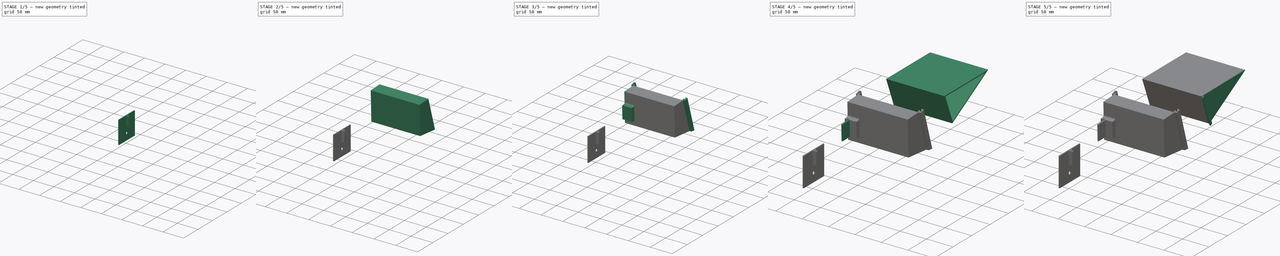
[diagram: build sequence overview — one tinted view per stage of 5, left to right]
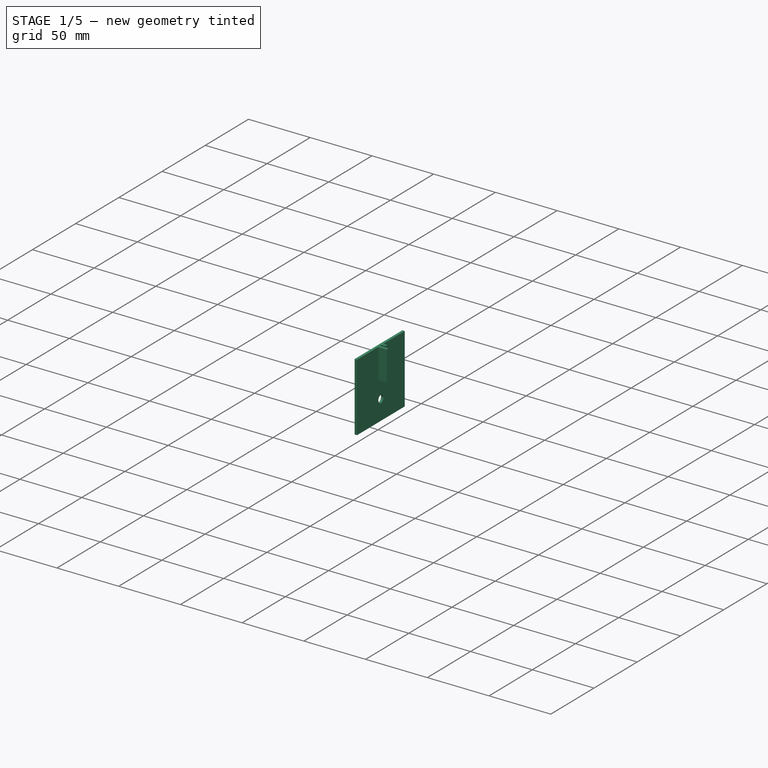
[diagram: stage 1 of 5 — iso view after this stage's code; geometry added in this stage tinted green]
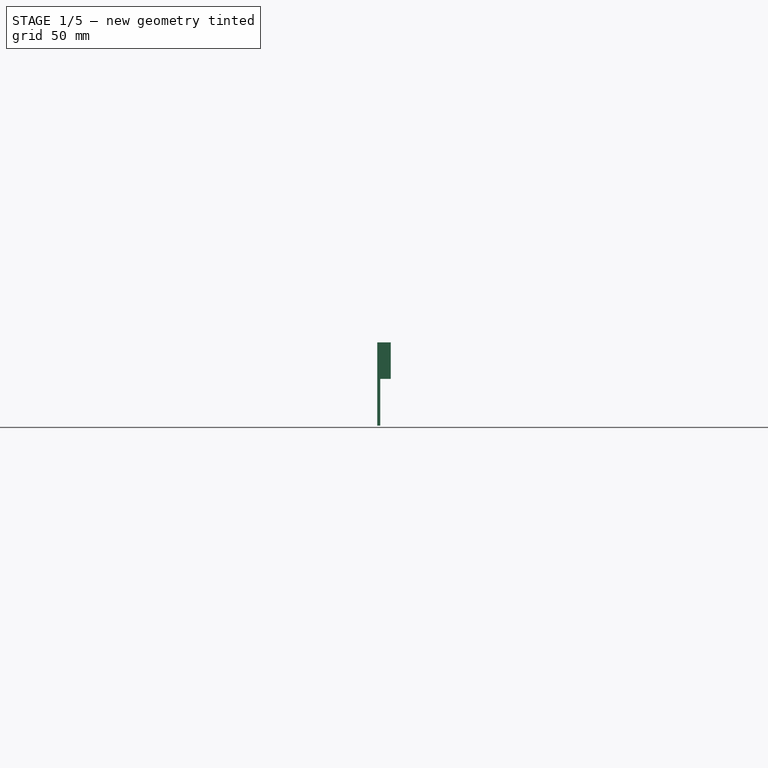
[diagram: stage 1 of 5 — front view after this stage's code; geometry added in this stage tinted green]
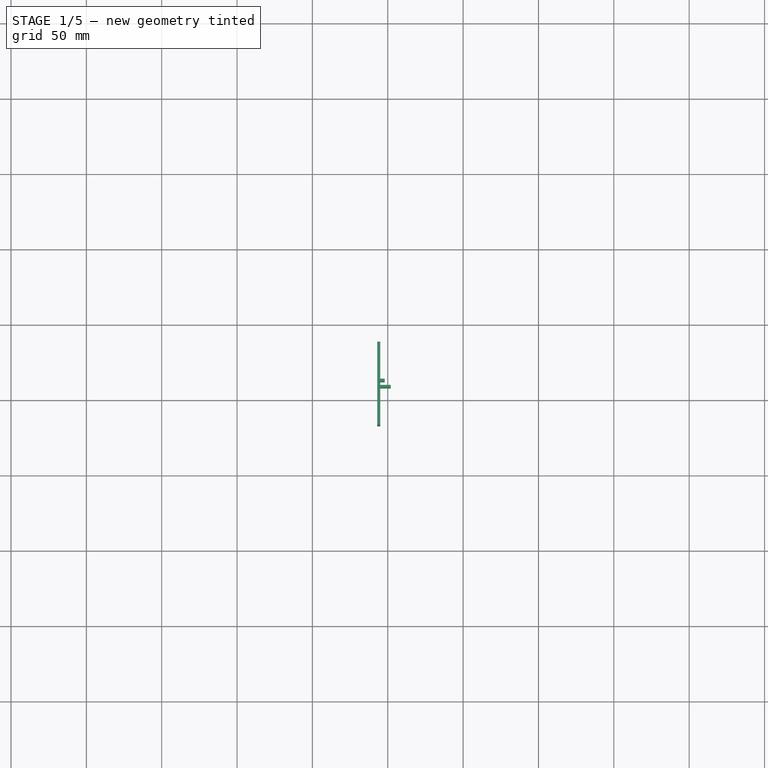
[diagram: stage 1 of 5 — top view after this stage's code; geometry added in this stage tinted green]
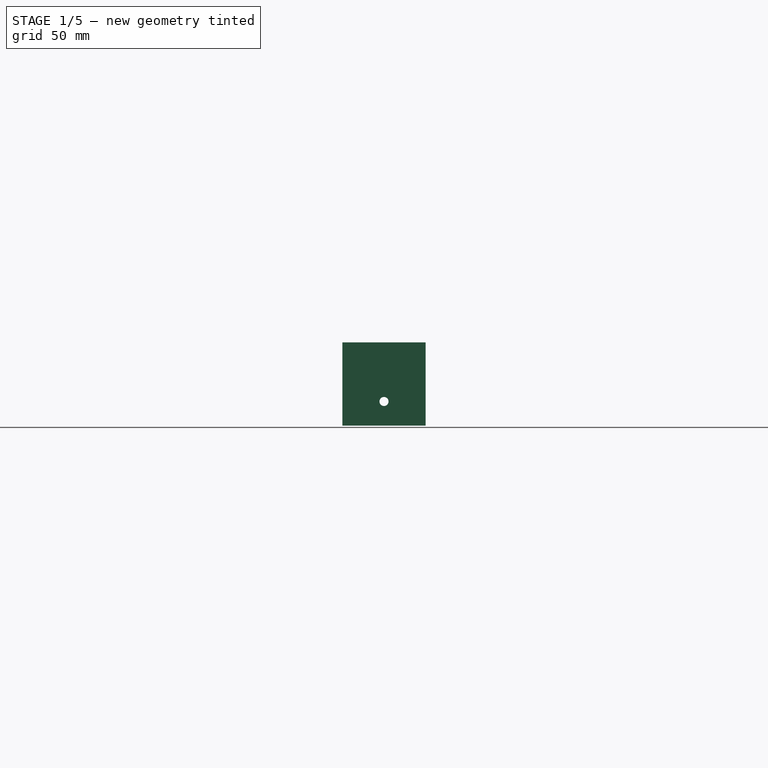
[diagram: stage 1 of 5 — right view after this stage's code; geometry added in this stage tinted green]
FCSTD DOCUMENT  (FreeCAD 0.19R24291 (Git))
Label: bunker
License: All rights reserved
LicenseURL: http://en.wikipedia.org/wiki/All_rights_reserved
objects: Sketcher::SketchObject×17, PartDesign::Pad×12, PartDesign::Plane×3, PartDesign::Body×3, Spreadsheet::Sheet×1, PartDesign::Mirrored×1, PartDesign::Hole×1, PartDesign::ShapeBinder×1, PartDesign::Pocket×1, App::Part×1
note: 53 computed .brp shape members not serialized (recipe doc carries the construction recipe); baked Part::Feature solids carry a one-line shape summary decoded from their .brp

FEATURE [PartDesign::ShapeBinder] CopyPad006
  Placement = pos=(0,0,0) rot=(0.57735,0.57735,0.57735;2.0944rad)
  TraceSupport = false
FEATURE [PartDesign::Plane] DatumPlane002
  Length = 197.613
  MapMode = 5
  Placement = pos=(-57,2.35e-14,7e-16) rot=(-0.57735,-0.57735,0.57735;2.0944rad)
  ResizeMode = 0
  Support = -> [CopyPad006]
  Width = 129.176
FEATURE [Sketcher::SketchObject] Sketch011
  FullyConstrained = false
  MapMode = 5
  Placement = pos=(-57,2.35e-14,7e-16) rot=(-0.57735,-0.57735,0.57735;2.0944rad)
  Support = -> [DatumPlane002]
  sketch-geometry (12):
    g0: Circle CenterX=-66.3976 CenterY=-0.4616 CenterZ=0 NormalX=0 NormalY=0 NormalZ=1 AngleXU=0 Radius=1.5
    g1: Circle CenterX=-112.598 CenterY=-0.4616 CenterZ=0 NormalX=0 NormalY=0 NormalZ=1 AngleXU=0 Radius=1.5
    g2: Circle CenterX=-89.4976 CenterY=11.1384 CenterZ=0 NormalX=0 NormalY=0 NormalZ=1 AngleXU=0 Radius=3
    g3: LineSegment StartX=-89.4976 StartY=-0.4616 StartZ=0 EndX=-111.098 EndY=-0.4616 EndZ=0
    g4: LineSegment StartX=-89.4976 StartY=-0.4616 StartZ=0 EndX=-114.098 EndY=-0.4616 EndZ=0
    g5: LineSegment StartX=-89.4976 StartY=-0.4616 StartZ=0 EndX=-67.8976 EndY=-0.4616 EndZ=0
    g6: LineSegment StartX=-89.4976 StartY=-0.4616 StartZ=0 EndX=-89.4976 EndY=8.1384 EndZ=0
    g7: Circle CenterX=-89.4976 CenterY=-0.4616 CenterZ=0 NormalX=0 NormalY=0 NormalZ=1 AngleXU=0 Radius=27.6
    g8: LineSegment StartX=-61.8976 StartY=-28.0616 StartZ=0 EndX=-117.098 EndY=-28.0616 EndZ=0
    g9: LineSegment StartX=-117.098 StartY=-28.0616 StartZ=0 EndX=-117.098 EndY=27.1384 EndZ=0
    g10: LineSegment StartX=-117.098 StartY=27.1384 StartZ=0 EndX=-61.8976 EndY=27.1384 EndZ=0
    g11: LineSegment StartX=-61.8976 StartY=27.1384 StartZ=0 EndX=-61.8976 EndY=-28.0616 EndZ=0
  constraints (34):
    c: Equal(g0,g1)
    c: PointOnObject(g3,g1)
    c: Coincident(g4,g3)
    c: PointOnObject(g4,g1)
    c: PointOnObject(g1,g4)
    c: PointOnObject(g3,g4)
    c: Coincident(g5,g3)
    c: PointOnObject(g5,g0)
    c: Perpendicular(g0,g5)
    c: Coincident(g6,g3)
    c: PointOnObject(g6,g2)
    c: Perpendicular(g3,g6)
    c: Perpendicular(g2,g6)
    c: Perpendicular(g5,g6)
    c: Equal(g5,g3)
    c: Diameter(g2) = 6
    c: Distance(g4) = 24.6
    c: Distance(g3) = 21.6
    c: Distance(g6) = 8.6
    c: Coincident(g7,g3)
    c: Radius(g7) = 27.6
    c: Angle(g-1,g3) = 3.14159
    c: Coincident(g8,g9)
    c: Coincident(g9,g10)
    c: Coincident(g10,g11)
    c: Coincident(g11,g8)
    c: Horizontal(g8)
    c: Horizontal(g10)
    c: Vertical(g9)
    c: Vertical(g11)
    c: Tangent(g8,g7)
    c: Tangent(g7,g11)
    c: Tangent(g9,g7)
    c: Tangent(g10,g7)
FEATURE [PartDesign::Pad] Pad007
  Direction = (1,1,1)
  Length = 2
  Length2 = 100
  Placement = pos=(-57,2.35e-14,7e-16) rot=(-0.57735,-0.57735,0.57735;2.0944rad)
  Profile = -> Sketch011
  Reversed = true
  Type = 0
FEATURE [Sketcher::SketchObject] Sketch015
  ExternalGeometry = -> [Pocket]
  FullyConstrained = true
  MapMode = 5
  Placement = pos=(-35,1e-16,6e-16) rot=(0.57735,0.57735,0.57735;2.0944rad)
  Support = -> [Pocket]
FEATURE [PartDesign::Pad] Pad008
  BaseFeature = -> Pad007
  Direction = (1,1,1)
  Length = 3
  Length2 = 100
  Placement = pos=(-57,2.35e-14,7e-16) rot=(-0.57735,-0.57735,0.57735;2.0944rad)
  Profile = -> Sketch012
  Type = 0
FEATURE [Sketcher::SketchObject] Sketch018
  ExternalGeometry = -> [Pad009]
  FullyConstrained = false
  MapMode = 5
  Placement = pos=(-49.8,2.49e-14,6e-16) rot=(-0.57735,-0.57735,0.57735;2.0944rad)
  Support = -> [Pad009]
  expr: Constraints[9] = <<D>>.thickness
  expr: Constraints[7] = <<D>>.thickness
  sketch-geometry (3):
    g0: LineSegment StartX=-21.1861 StartY=-47.7389 StartZ=0 EndX=-20.3743 EndY=-20.8053 EndZ=0
    g1: LineSegment StartX=-23.0598 StartY=-43.5178 StartZ=0 EndX=-21.0607 EndY=-43.5781 EndZ=0
    g2: LineSegment StartX=-20.3743 StartY=-20.8053 StartZ=0 EndX=-20.3141 EndY=-18.8062 EndZ=0
  constraints (10):
    c: PointOnObject(g1,g-3)
    c: PointOnObject(g1,g0)
    c: Perpendicular(g1,g0)
    c: Perpendicular(g1,g-3)
    c: PointOnObject(g0,g-4)
    c: Coincident(g2,g0)
    c: Parallel(g0,g2)
    c: Distance(g2) = 2
    c: PointOnObject(g2,g-5)
    c: Distance(g1) = 2
FEATURE [PartDesign::Body] Body
  Group = -> [Sketch,Pad,Sketch001,Pad001,DatumPlane,Sketch002,Pad002,Mirrored,Sketch008,Sketch009,Pad006,Sketch014,Pocket,Sketch015,Sketch017,Pad009,Sketch018]
  Origin = -> Origin
  Tip = -> Pad009
FEATURE [PartDesign::Pad] Pad010
  BaseFeature = -> Pad008
  Direction = (1,1,1)
  Length = 4
  Length2 = 100
  Placement = pos=(-57,2.35e-14,7e-16) rot=(-0.57735,-0.57735,0.57735;2.0944rad)
  Profile = -> Pad008 [Face17]
  Type = 0
  expr: Length = 2 * <<D>>.thickness
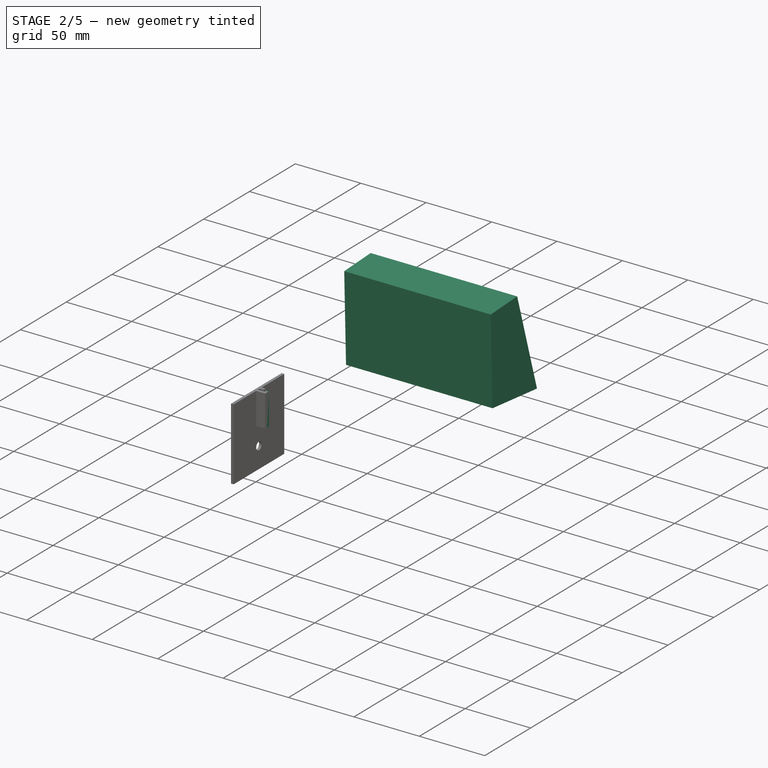
[diagram: stage 2 of 5 — iso view after this stage's code; geometry added in this stage tinted green]
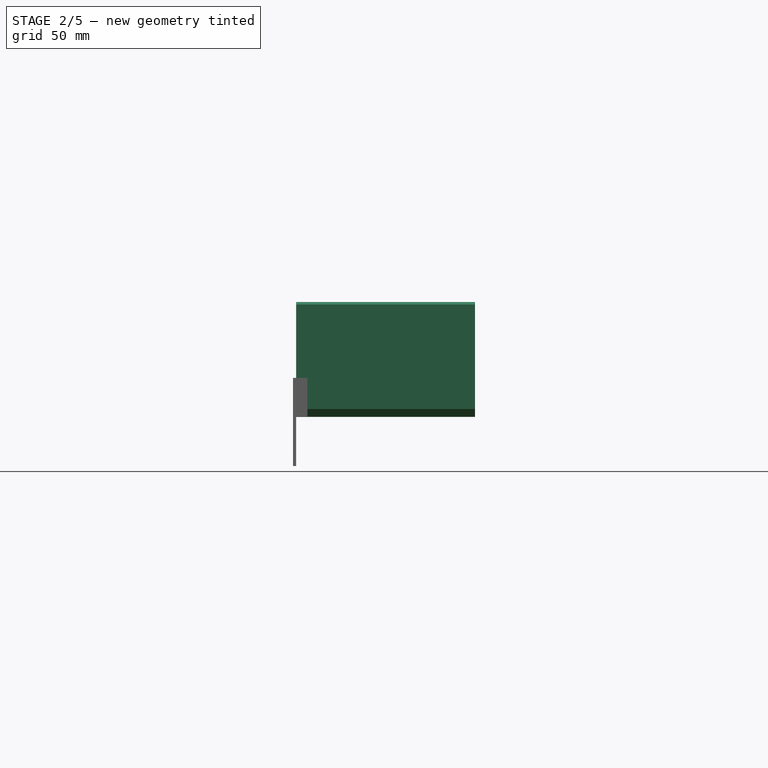
[diagram: stage 2 of 5 — front view after this stage's code; geometry added in this stage tinted green]
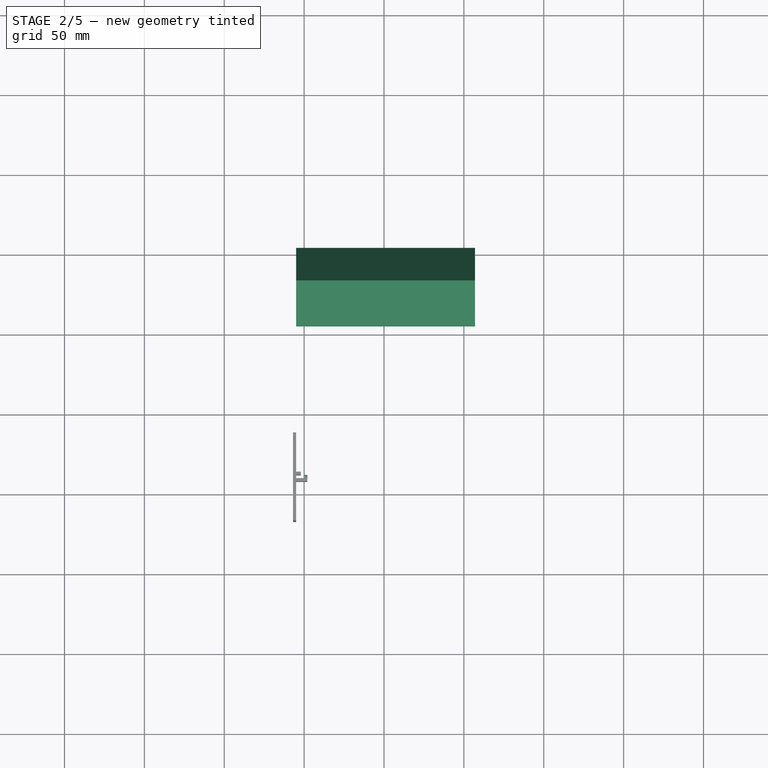
[diagram: stage 2 of 5 — top view after this stage's code; geometry added in this stage tinted green]
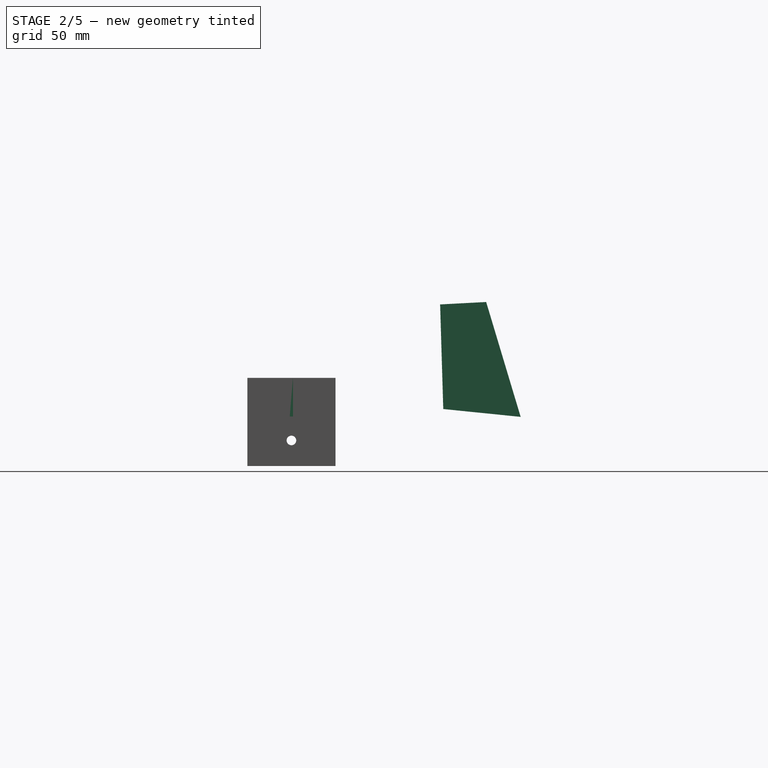
[diagram: stage 2 of 5 — right view after this stage's code; geometry added in this stage tinted green]
FEATURE [Spreadsheet::Sheet] Spreadsheet  label="D"
  cells = A1=Thickness; B1(thickness)=2; A2=Width; B2(width)=110; A3=Gap; B3(gap)=0.1
FEATURE [Sketcher::SketchObject] Sketch
  FullyConstrained = false
  MapMode = 5
  Placement = pos=(0,0,0) rot=(0.57735,0.57735,0.57735;2.0944rad)
  Support = -> [YZ_Plane]
  expr: Constraints[27] = <<D>>.thickness
  sketch-geometry (12):
    g0: LineSegment StartX=5.55735 StartY=8.52684 StartZ=0 EndX=3.58389 EndY=74.0022 EndZ=0
    g1: LineSegment StartX=3.58389 StartY=74.0022 StartZ=0 EndX=32.406 EndY=75.5298 EndZ=0
    g2: LineSegment StartX=32.406 StartY=75.5298 StartZ=0 EndX=54.0069 EndY=3.62284 EndZ=0
    g3: LineSegment StartX=54.0069 StartY=3.62284 StartZ=0 EndX=5.55735 EndY=8.52684 EndZ=0
    g4: LineSegment StartX=5.64187 StartY=72.1085 StartZ=0 EndX=30.9427 EndY=73.4494 EndZ=0
    g5: LineSegment StartX=30.9427 StartY=73.4494 StartZ=0 EndX=51.2303 EndY=5.9141 EndZ=0
    g6: LineSegment StartX=51.2303 StartY=5.9141 StartZ=0 EndX=7.50361 EndY=10.3401 EndZ=0
    g7: LineSegment StartX=7.50361 StartY=10.3401 StartZ=0 EndX=5.64187 EndY=72.1085 EndZ=0
    g8: LineSegment StartX=11.7302 StartY=72.4312 StartZ=0 EndX=11.6244 EndY=74.4284 EndZ=0
    g9: LineSegment StartX=32.3973 StartY=68.6072 StartZ=0 EndX=34.3127 EndY=69.1826 EndZ=0
    g10: LineSegment StartX=6.02577 StartY=59.3714 StartZ=0 EndX=4.02668 EndY=59.3112 EndZ=0
    g11: LineSegment StartX=26.9949 StartY=6.35696 StartZ=0 EndX=27.1963 EndY=8.34679 EndZ=0
  constraints (29):
    c: Coincident(g0,g1)
    c: Coincident(g1,g2)
    c: Coincident(g2,g3)
    c: Coincident(g3,g0)
    c: Coincident(g4,g5)
    c: Coincident(g5,g6)
    c: Coincident(g6,g7)
    c: Coincident(g7,g4)
    c: PointOnObject(g11,g6)
    c: PointOnObject(g11,g3)
    c: PointOnObject(g10,g7)
    c: PointOnObject(g10,g0)
    c: PointOnObject(g9,g5)
    c: PointOnObject(g9,g2)
    c: PointOnObject(g8,g1)
    c: PointOnObject(g8,g4)
    c: Perpendicular(g6,g11)
    c: Perpendicular(g3,g11)
    c: Perpendicular(g0,g10)
    c: Perpendicular(g7,g10)
    c: Perpendicular(g1,g8)
    c: Perpendicular(g4,g8)
    c: Perpendicular(g5,g9)
    c: Perpendicular(g2,g9)
    c: Equal(g8,g9)
    c: Equal(g9,g10)
    c: Equal(g10,g11)
    c: Distance(g11) = 2
    c: Angle(g5,g6) = 1.1781
FEATURE [PartDesign::Pad] Pad
  Direction = (1,1,1)
  Length = 55
  Length2 = 55
  Placement = pos=(0,0,0) rot=(0.57735,0.57735,0.57735;2.0944rad)
  Profile = -> Sketch
  Type = 4
  expr: Length2 = <<D>>.width / 2
  expr: Length = <<D>>.width / 2
FEATURE [Sketcher::SketchObject] Sketch001
  ExternalGeometry = -> [Pad]
  FullyConstrained = true
  MapMode = 5
  Placement = pos=(55,-2.44e-14,1.22e-14) rot=(0.57735,0.57735,0.57735;2.0944rad)
  Support = -> [Pad]
  sketch-geometry (4):
    g0: LineSegment StartX=3.58389 StartY=74.0022 StartZ=0 EndX=32.406 EndY=75.5298 EndZ=0
    g1: LineSegment StartX=32.406 StartY=75.5298 StartZ=0 EndX=54.0069 EndY=3.62284 EndZ=0
    g2: LineSegment StartX=54.0069 StartY=3.62284 StartZ=0 EndX=5.55735 EndY=8.52684 EndZ=0
    g3: LineSegment StartX=5.55735 StartY=8.52684 StartZ=0 EndX=3.58389 EndY=74.0022 EndZ=0
  constraints (8):
    c: Coincident(g-4,g0)
    c: Coincident(g0,g-5)
    c: Coincident(g0,g1)
    c: Coincident(g1,g-6)
    c: Coincident(g1,g2)
    c: Coincident(g2,g-6)
    c: Coincident(g2,g3)
    c: Coincident(g3,g0)
FEATURE [PartDesign::Pad] Pad001
  BaseFeature = -> Pad
  Direction = (1,1,1)
  Length = 2
  Length2 = 100
  Placement = pos=(0,0,0) rot=(0.57735,0.57735,0.57735;2.0944rad)
  Profile = -> Sketch001
  Type = 0
  expr: Length = <<D>>.thickness
FEATURE [Sketcher::SketchObject] Sketch013
  ExternalGeometry = -> [Pad010]
  FullyConstrained = true
  MapMode = 5
  Placement = pos=(-57,-90.5476,-1.94e-14) rot=(-0.57735,0.57735,0.57735;2.0944rad)
  Support = -> [Pad010]
  sketch-geometry (4):
    g0: LineSegment StartX=-28.0616 StartY=-9 StartZ=0 EndX=-3.8616 EndY=-9 EndZ=0
    g1: LineSegment StartX=-3.8616 StartY=-9 StartZ=0 EndX=-3.8616 EndY=-7 EndZ=0
    g2: LineSegment StartX=-3.8616 StartY=-7 StartZ=0 EndX=-28.0616 EndY=-7 EndZ=0
    g3: LineSegment StartX=-28.0616 StartY=-7 StartZ=0 EndX=-28.0616 EndY=-9 EndZ=0
  constraints (10):
    c: Coincident(g0,g1)
    c: Coincident(g1,g2)
    c: Coincident(g2,g3)
    c: Coincident(g3,g0)
    c: Vertical(g3)
    c: Distance(g3) = 2
    c: Coincident(g0,g-4)
    c: Coincident(g0,g-4)
    c: Parallel(g1,g3)
    c: Parallel(g2,g0)
FEATURE [PartDesign::Pad] Pad011
  BaseFeature = -> Pad010
  Direction = (1,1,1)
  Length = 2
  Length2 = 100
  Placement = pos=(-57,2.35e-14,7e-16) rot=(-0.57735,-0.57735,0.57735;2.0944rad)
  Profile = -> Sketch013
  Type = 0
  expr: Length = <<D>>.thickness
FEATURE [PartDesign::Body] Body002
  Group = -> [DatumPlane002,CopyPad006,Sketch011,Pad007,Sketch012,Sketch013,Pad008,Sketch016,Pad010,Pad011]
  Origin = -> Origin003
  Tip = -> Pad011
FEATURE [App::Part] Part
  Group = -> [Body,Body001,Spreadsheet,Body002]
  Origin = -> Origin002
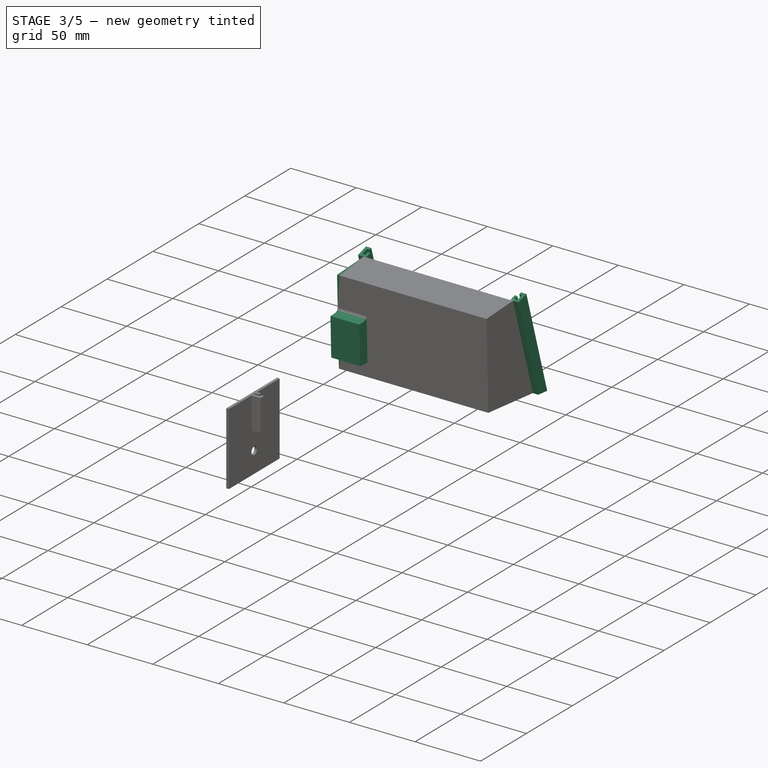
[diagram: stage 3 of 5 — iso view after this stage's code; geometry added in this stage tinted green]
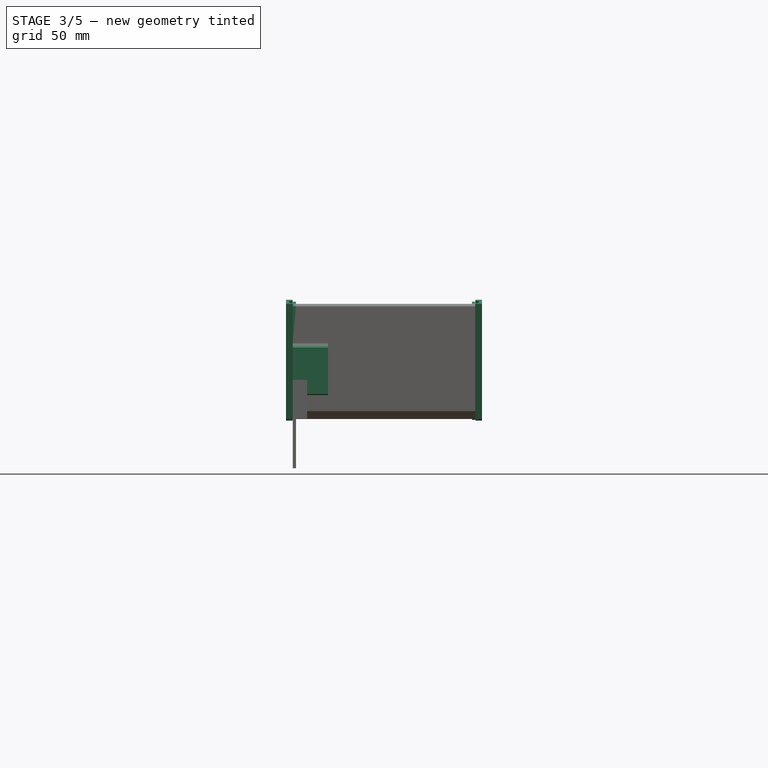
[diagram: stage 3 of 5 — front view after this stage's code; geometry added in this stage tinted green]
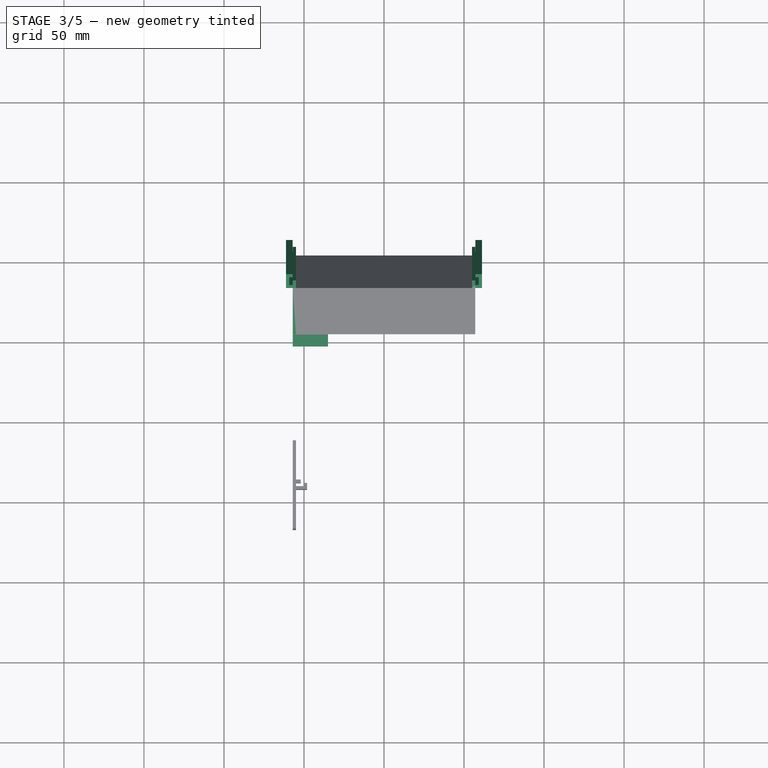
[diagram: stage 3 of 5 — top view after this stage's code; geometry added in this stage tinted green]
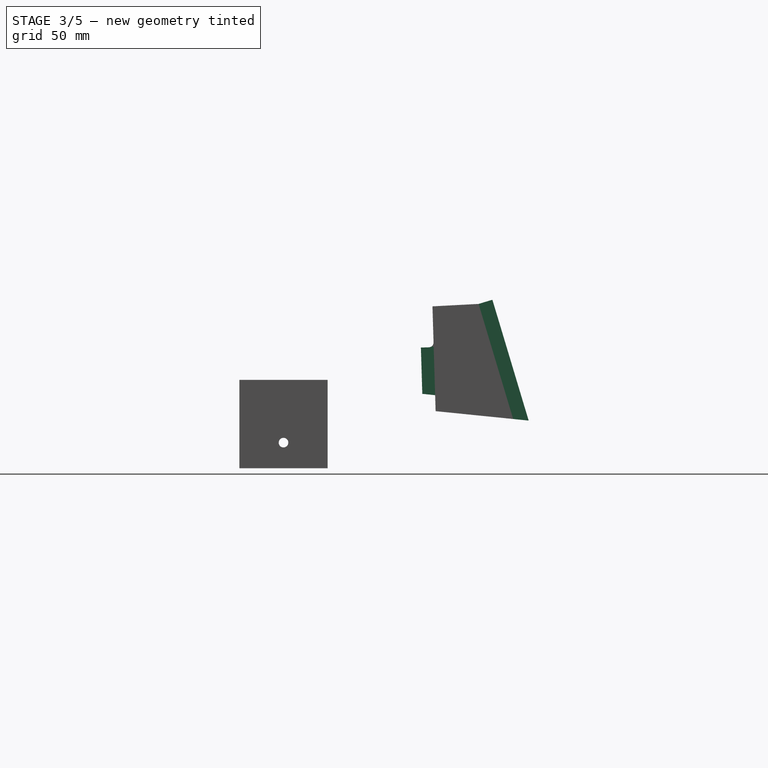
[diagram: stage 3 of 5 — right view after this stage's code; geometry added in this stage tinted green]
FEATURE [PartDesign::Plane] DatumPlane
  Length = 146.134
  MapMode = 7
  Placement = pos=(57,32.406,75.5298) rot=(1,0,0;0.291824rad)
  ResizeMode = 0
  Support = -> [Pad001]
  Width = 138.792
FEATURE [Sketcher::SketchObject] Sketch002
  ExternalGeometry = -> [Pad001]
  FullyConstrained = true
  MapMode = 5
  Placement = pos=(57,32.406,75.5298) rot=(1,0,0;0.291824rad)
  Support = -> [DatumPlane]
  expr: Constraints[28] = <<D>>.gap
  expr: Constraints[27] = <<D>>.thickness
  expr: Constraints[26] = <<D>>.thickness
  expr: Constraints[24] = <<D>>.thickness + 2 * <<D>>.gap
  expr: Constraints[23] = <<D>>.thickness
  sketch-geometry (11):
    g0: LineSegment StartX=0 StartY=7.1e-15 StartZ=0 EndX=4.2 EndY=0 EndZ=0
    g1: LineSegment StartX=4.2 StartY=0 StartZ=0 EndX=4.2 EndY=9 EndZ=0
    g2: LineSegment StartX=4.2 StartY=9 StartZ=0 EndX=0.1 EndY=9 EndZ=0
    g3: LineSegment StartX=0.1 StartY=9 StartZ=0 EndX=0.1 EndY=7 EndZ=0
    g4: LineSegment StartX=0.1 StartY=7 StartZ=0 EndX=2.2 EndY=7 EndZ=0
    g5: LineSegment StartX=2.2 StartY=7 StartZ=0 EndX=2.2 EndY=2 EndZ=0
    g6: LineSegment StartX=2.2 StartY=2 StartZ=0 EndX=0 EndY=2 EndZ=0
    g7: LineSegment StartX=0 StartY=2 StartZ=0 EndX=0 EndY=5 EndZ=0
    g8: LineSegment StartX=0 StartY=5 StartZ=0 EndX=-2 EndY=5 EndZ=0
    g9: LineSegment StartX=-2 StartY=5 StartZ=0 EndX=-2 EndY=0 EndZ=0
    g10: LineSegment StartX=-2 StartY=0 StartZ=0 EndX=0 EndY=7.1e-15 EndZ=0
  constraints (31):
    c: Coincident(g-1,g0)
    c: PointOnObject(g0,g-1)
    c: Coincident(g0,g1)
    c: Vertical(g1)
    c: Coincident(g1,g2)
    c: Horizontal(g2)
    c: Coincident(g2,g3)
    c: Vertical(g3)
    c: Coincident(g3,g4)
    c: Horizontal(g4)
    c: Coincident(g4,g5)
    c: Vertical(g5)
    c: Coincident(g5,g6)
    c: PointOnObject(g6,g-2)
    c: Horizontal(g6)
    c: Coincident(g6,g7)
    c: PointOnObject(g7,g-2)
    c: Coincident(g7,g8)
    c: Horizontal(g8)
    c: Coincident(g8,g9)
    c: Coincident(g9,g-3)
    c: Vertical(g9)
    c: Equal(g8,g3)
    c: DistanceX(g5,g0) = 2
    c: Distance(g6) = 2.2
    c: Distance(g7) = 3
    c: DistanceY(g0,g5) = 2
    c: DistanceY(g7,g3) = 2
    c: DistanceX(g7,g3) = 0.1
    c: Coincident(g10,g9)
    c: Coincident(g10,g0)
FEATURE [PartDesign::Pad] Pad002
  BaseFeature = -> Pad001
  Direction = (1,1,1)
  Length = 10
  Length2 = 100
  Placement = pos=(0,0,0) rot=(0.57735,0.57735,0.57735;2.0944rad)
  Profile = -> Sketch002
  Type = 3
  UpToFace = -> Pad001 [Face7]
FEATURE [PartDesign::Mirrored] Mirrored
  BaseFeature = -> Pad002
  MirrorPlane = -> YZ_Plane
  Originals = -> [Pad001,Pad002]
  Placement = pos=(0,0,0) rot=(0.57735,0.57735,0.57735;2.0944rad)
FEATURE [PartDesign::Body] Body001
  Group = -> [Sketch003,Pad003,Sketch004,Pad004,DatumPlane001,Sketch005,Pad005,Sketch006,Hole]
  Origin = -> Origin001
  Tip = -> Hole
FEATURE [Sketcher::SketchObject] Sketch008
  ExternalGeometry = -> [Mirrored]
  FullyConstrained = true
  MapMode = 5
  Placement = pos=(-57,2.35e-14,7.1e-15) rot=(-0.57735,-0.57735,0.57735;2.0944rad)
  Support = -> [Mirrored]
  sketch-geometry (7):
    g0: LineSegment StartX=5.25608 StartY=-18.5223 StartZ=0 EndX=4.35228 EndY=-48.5087 EndZ=0
    g1: LineSegment StartX=4.35228 StartY=-48.5087 StartZ=0 EndX=-3.64409 EndY=-48.2677 EndZ=0
    g2: LineSegment StartX=-3.64409 StartY=-48.2677 StartZ=0 EndX=-2.77204 EndY=-19.3349 EndZ=0
    g3: LineSegment StartX=5.25608 StartY=-18.5223 StartZ=0 EndX=-2.77204 EndY=-19.3349 EndZ=0
    g4: ArcOfCircle CenterX=1.26326 CenterY=-51.4169 CenterZ=0 NormalX=0 NormalY=0 NormalZ=1 AngleXU=0 Radius=3 StartAngle=6.25305 EndAngle=7.82384
    g5: LineSegment StartX=-3.64409 StartY=-48.2677 StartZ=0 EndX=1.35366 EndY=-48.4183 EndZ=0
    g6: LineSegment StartX=4.26189 StartY=-51.5073 StartZ=0 EndX=4.35228 EndY=-48.5087 EndZ=0
  constraints (21):
    c: PointOnObject(g0,g-4)
    c: Coincident(g0,g1)
    c: Coincident(g1,g2)
    c: Parallel(g-3,g3)
    c: Distance(g1) = 8
    c: Distance(g0) = 30
    c: Parallel(g0,g2)
    c: Perpendicular(g0,g1)
    c: PointOnObject(g4,g1)
    c: PointOnObject(g4,g-4)
    c: Coincident(g5,g2)
    c: Coincident(g5,g4)
    c: Tangent(g4,g5)
    c: Tangent(g4,g-4)
    c: Radius(g4) = 3
    c: Coincident(g6,g4)
    c: Coincident(g6,g0)
    c: Coincident(g0,g3)
    c: Coincident(g2,g3)
    c: PointOnObject(g0,g-4)
    c: Distance(g0,g-4) = 10
FEATURE [Sketcher::SketchObject] Sketch009
  ExternalGeometry = -> [Mirrored,Sketch008]
  FullyConstrained = false
  MapMode = 5
  Placement = pos=(-57,2.35e-14,7.1e-15) rot=(-0.57735,-0.57735,0.57735;2.0944rad)
  Support = -> [Mirrored]
  sketch-geometry (10):
    g0: Circle CenterX=-7.03227 CenterY=0.462382 CenterZ=0 NormalX=0 NormalY=0 NormalZ=1 AngleXU=0 Radius=3
    g1: LineSegment StartX=-10.0202 StartY=0.19411 StartZ=0 EndX=-18.5858 EndY=-0.574939 EndZ=0
    g2: LineSegment StartX=-18.5858 StartY=-0.574939 StartZ=0 EndX=-20.4905 EndY=20.6397 EndZ=0
    g3: LineSegment StartX=-18.5858 StartY=-0.574939 StartZ=0 EndX=-20.7856 EndY=23.9265 EndZ=0
    g4: LineSegment StartX=-18.5858 StartY=-0.574939 StartZ=0 EndX=-16.6811 EndY=-21.7896 EndZ=0
    g5: Circle CenterX=-20.6381 CenterY=22.2831 CenterZ=0 NormalX=0 NormalY=0 NormalZ=1 AngleXU=0 Radius=1.65
    g6: Circle CenterX=-16.5335 CenterY=-23.433 CenterZ=0 NormalX=0 NormalY=0 NormalZ=1 AngleXU=0 Radius=1.65
    g7: ArcOfCircle CenterX=-16.5335 CenterY=-23.433 CenterZ=0 NormalX=0 NormalY=0 NormalZ=1 AngleXU=0 Radius=4.26244 StartAngle=3.23114 EndAngle=4.25778
    g8: ArcOfCircle CenterX=-20.6381 CenterY=22.2831 CenterZ=0 NormalX=0 NormalY=0 NormalZ=1 AngleXU=0 Radius=4.26244 StartAngle=1.19385 EndAngle=3.23114
    g9: LineSegment StartX=-20.7789 StartY=-23.8142 StartZ=0 EndX=-24.8834 EndY=21.9019 EndZ=0
  constraints (26):
    c: Radius(g0) = 3
    c: Perpendicular(g0,g1)
    c: PointOnObject(g1,g0)
    c: Coincident(g2,g1)
    c: Coincident(g3,g1)
    c: Coincident(g4,g1)
    c: PointOnObject(g3,g5)
    c: PointOnObject(g2,g5)
    c: PointOnObject(g2,g3)
    c: Perpendicular(g5,g2)
    c: Equal(g2,g4)
    c: Perpendicular(g2,g1)
    c: Parallel(g4,g2)
    c: PointOnObject(g4,g6)
    c: Equal(g6,g5)
    c: Perpendicular(g6,g4)
    c: Distance(g3) = 24.6
    c: Distance(g2) = 21.3
    c: Distance(g1) = 8.6
    c: Coincident(g7,g6)
    c: Coincident(g8,g5)
    c: Coincident(g9,g7)
    c: Coincident(g9,g8)
    c: Equal(g7,g8)
    c: Tangent(g9,g7)
    c: Tangent(g9,g8)
FEATURE [PartDesign::Pad] Pad006
  BaseFeature = -> Mirrored
  Direction = (1,1,1)
  Length = 22
  Length2 = 100
  Placement = pos=(0,0,0) rot=(0.57735,0.57735,0.57735;2.0944rad)
  Profile = -> Sketch008
  Reversed = true
  Type = 0
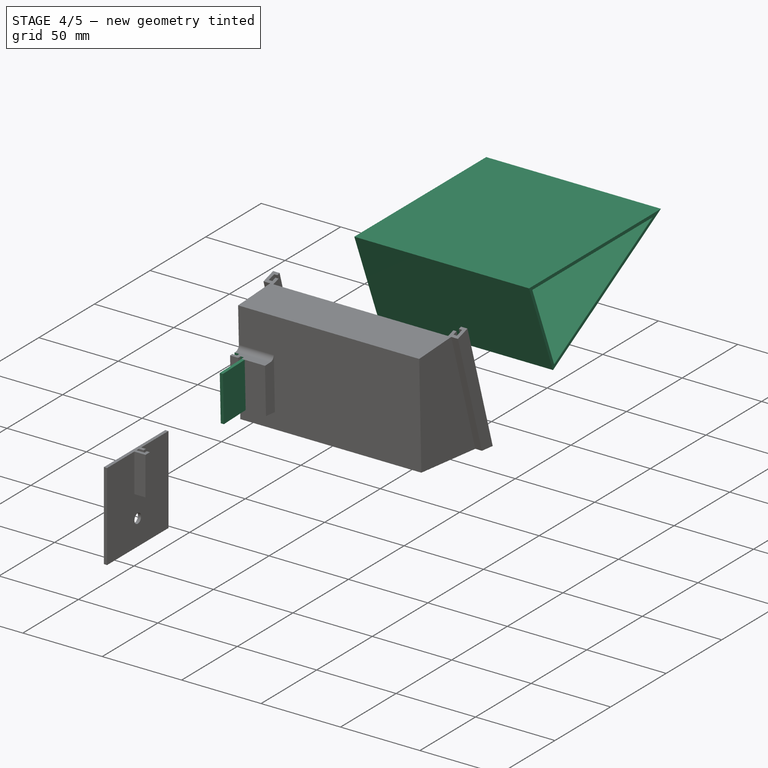
[diagram: stage 4 of 5 — iso view after this stage's code; geometry added in this stage tinted green]
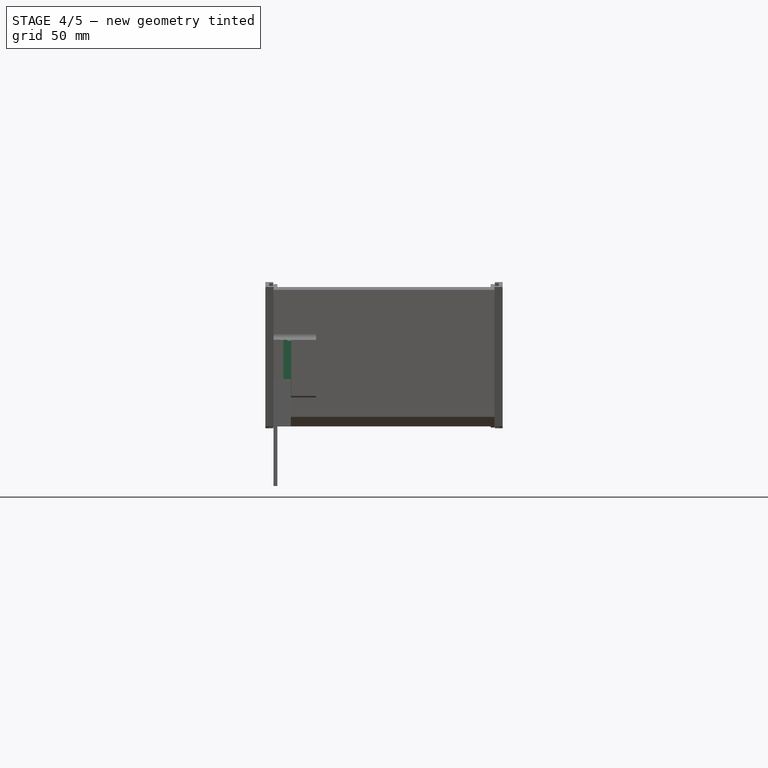
[diagram: stage 4 of 5 — front view after this stage's code; geometry added in this stage tinted green]
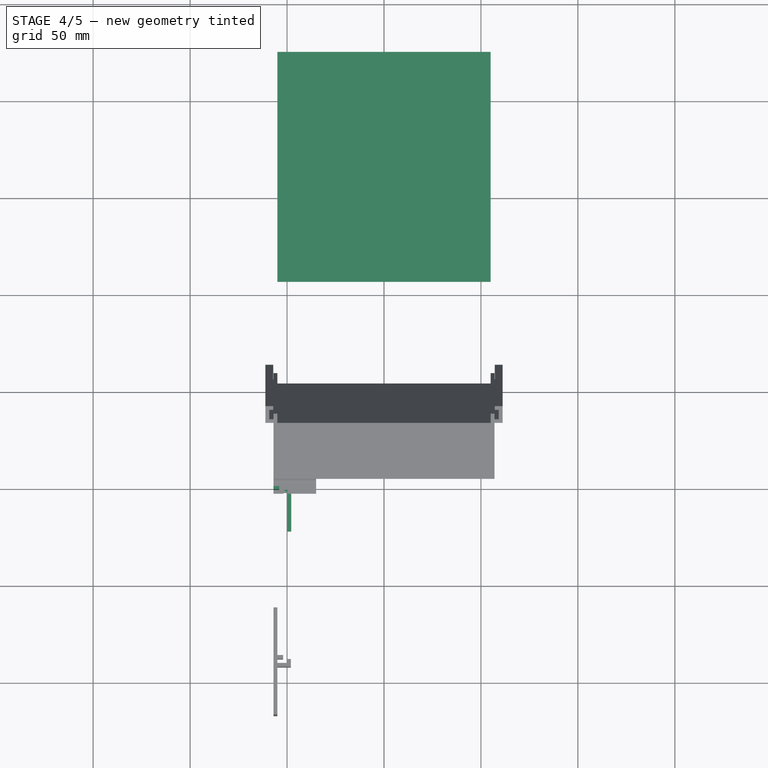
[diagram: stage 4 of 5 — top view after this stage's code; geometry added in this stage tinted green]
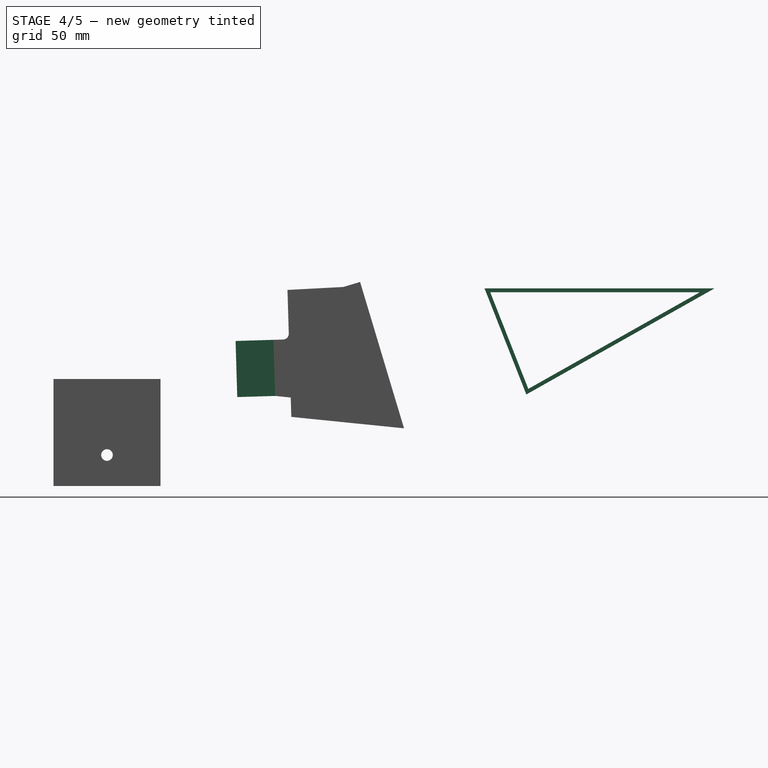
[diagram: stage 4 of 5 — right view after this stage's code; geometry added in this stage tinted green]
FEATURE [Sketcher::SketchObject] Sketch003
  FullyConstrained = false
  MapMode = 5
  Placement = pos=(0,0,0) rot=(0.57735,0.57735,0.57735;2.0944rad)
  Support = -> [YZ_Plane001]
  expr: Constraints[21] = <<D>>.thickness
  sketch-geometry (9):
    g0: LineSegment StartX=105.207 StartY=74.799 StartZ=0 EndX=126.771 EndY=20.1005 EndZ=0
    g1: LineSegment StartX=126.771 StartY=20.1005 StartZ=0 EndX=223.821 EndY=74.799 EndZ=0
    g2: LineSegment StartX=223.821 StartY=74.799 StartZ=0 EndX=105.207 EndY=74.799 EndZ=0
    g3: LineSegment StartX=108.145 StartY=72.799 StartZ=0 EndX=127.79 EndY=22.9703 EndZ=0
    g4: LineSegment StartX=127.79 StartY=22.9703 StartZ=0 EndX=216.199 EndY=72.799 EndZ=0
    g5: LineSegment StartX=216.199 StartY=72.799 StartZ=0 EndX=108.145 EndY=72.799 EndZ=0
    g6: LineSegment StartX=143.569 StartY=72.799 StartZ=0 EndX=143.569 EndY=74.799 EndZ=0
    g7: LineSegment StartX=119.709 StartY=43.4676 StartZ=0 EndX=117.848 EndY=42.7341 EndZ=0
    g8: LineSegment StartX=150.878 StartY=35.9834 StartZ=0 EndX=151.86 EndY=34.241 EndZ=0
  constraints (22):
    c: Coincident(g0,g1)
    c: Coincident(g1,g2)
    c: Coincident(g2,g0)
    c: Horizontal(g2)
    c: Coincident(g3,g4)
    c: Coincident(g4,g5)
    c: Coincident(g5,g3)
    c: Horizontal(g5)
    c: PointOnObject(g6,g5)
    c: PointOnObject(g6,g2)
    c: Vertical(g6)
    c: PointOnObject(g7,g3)
    c: PointOnObject(g7,g0)
    c: PointOnObject(g8,g4)
    c: PointOnObject(g8,g1)
    c: Perpendicular(g1,g8)
    c: Perpendicular(g4,g8)
    c: Perpendicular(g3,g7)
    c: Perpendicular(g0,g7)
    c: Equal(g8,g7)
    c: Equal(g7,g6)
    c: Distance(g8) = 2
FEATURE [PartDesign::Pad] Pad003
  Direction = (1,1,1)
  Length = 55
  Length2 = 55
  Placement = pos=(0,0,0) rot=(0.57735,0.57735,0.57735;2.0944rad)
  Profile = -> Sketch003
  Type = 4
  expr: Length2 = <<D>>.width / 2
  expr: Length = <<D>>.width / 2
FEATURE [Sketcher::SketchObject] Sketch012
  ExternalGeometry = -> [Pad007]
  FullyConstrained = false
  MapMode = 5
  Placement = pos=(-55,2.23e-14,5e-16) rot=(0.57735,0.57735,0.57735;2.0944rad)
  Support = -> [Pad007]
  expr: Constraints[13] = <<D>>.thickness + <<D>>.gap
  sketch-geometry (16):
    g0: LineSegment StartX=-88.4476 StartY=28.0616 StartZ=0 EndX=-88.4476 EndY=3.8616 EndZ=0
    g1: LineSegment StartX=-86.4476 StartY=28.0616 StartZ=0 EndX=-86.4476 EndY=3.8616 EndZ=0
    g2: LineSegment StartX=-86.4476 StartY=28.0616 StartZ=0 EndX=-88.4476 EndY=28.0616 EndZ=0
    g3: LineSegment StartX=-90.5476 StartY=28.0616 StartZ=0 EndX=-90.5476 EndY=3.8616 EndZ=0
    g4: LineSegment StartX=-92.5476 StartY=28.0616 StartZ=0 EndX=-92.5476 EndY=3.8616 EndZ=0
    g5: LineSegment StartX=-90.5476 StartY=10.591 StartZ=0 EndX=-88.4476 EndY=10.591 EndZ=0
    g6: LineSegment StartX=-92.5476 StartY=10.0776 StartZ=0 EndX=-90.5476 EndY=10.0776 EndZ=0
    g7: LineSegment StartX=-92.5476 StartY=3.8616 StartZ=0 EndX=-89.4976 EndY=3.8616 EndZ=0
    g8: LineSegment StartX=-89.4976 StartY=3.8616 StartZ=0 EndX=-86.4476 EndY=3.8616 EndZ=0
    g9: LineSegment StartX=-89.4976 StartY=12.1843 StartZ=0 EndX=-89.4976 EndY=3.8616 EndZ=0
    g10: LineSegment StartX=-89.4976 StartY=3.8616 StartZ=0 EndX=-89.4976 EndY=-11.1384 EndZ=0
    g11: LineSegment StartX=-92.5476 StartY=28.0616 StartZ=0 EndX=-90.5476 EndY=28.0616 EndZ=0
    g12: LineSegment StartX=-88.4476 StartY=28.0616 StartZ=0 EndX=-86.4476 EndY=28.0616 EndZ=0
    g13: GeomPoint X=-89.4976 Y=-8.1384 Z=0
    g14: LineSegment StartX=-92.5476 StartY=3.8616 StartZ=0 EndX=-90.5476 EndY=3.8616 EndZ=0
    g15: LineSegment StartX=-88.4476 StartY=3.8616 StartZ=0 EndX=-86.4476 EndY=3.8616 EndZ=0
  constraints (44):
    c: Parallel(g1,g0)
    c: Coincident(g2,g1)
    c: PointOnObject(g2,g0)
    c: Perpendicular(g0,g2)
    c: Distance(g2) = 2
    c: Parallel(g4,g3)
    c: Parallel(g4,g0)
    c: PointOnObject(g5,g3)
    c: PointOnObject(g5,g0)
    c: PointOnObject(g6,g3)
    c: PointOnObject(g6,g4)
    c: Perpendicular(g4,g6)
    c: Equal(g6,g2)
    c: Distance(g5) = 2.1
    c: Vertical(g4)
    c: Perpendicular(g0,g5)
    c: Coincident(g7,g8)
    c: Coincident(g10,g9)
    c: Coincident(g7,g9)
    c: Perpendicular(g9,g7)
    c: Perpendicular(g8,g10)
    c: Perpendicular(g9,g8)
    c: Coincident(g7,g4)
    c: Coincident(g1,g8)
    c: PointOnObject(g0,g8)
    c: PointOnObject(g3,g7)
    c: Equal(g7,g8)
    c: Coincident(g4,g11)
    c: Coincident(g11,g3)
    c: Coincident(g0,g12)
    c: Coincident(g12,g1)
    c: PointOnObject(g4,g-5)
    c: PointOnObject(g3,g-5)
    c: PointOnObject(g0,g-5)
    c: PointOnObject(g1,g-5)
    c: Coincident(g10,g-6)
    c: Vertical(g9)
    c: PointOnObject(g13,g10)
    c: PointOnObject(g13,g-6)
    c: Distance(g13,g7) = 12
    c: Coincident(g15,g0)
    c: Coincident(g15,g1)
    c: Coincident(g14,g3)
    c: Coincident(g14,g4)
FEATURE [Sketcher::SketchObject] Sketch014
  ExternalGeometry = -> [Pad006]
  FullyConstrained = true
  MapMode = 5
  Placement = pos=(-5e-16,-1.4568,48.3336) rot=(0.015063,0.015063,-0.999773;1.57102rad)
  Support = -> [Pad006]
  expr: Constraints[22] = <<D>>.thickness
  expr: Constraints[21] = <<D>>.thickness + <<D>>.gap
  expr: Constraints[23] = <<D>>.thickness
  expr: Constraints[19] = <<D>>.thickness + <<D>>.gap
  sketch-geometry (8):
    g0: LineSegment StartX=0.188285 StartY=-57 StartZ=0 EndX=-1.81171 EndY=-57 EndZ=0
    g1: LineSegment StartX=-1.81171 StartY=-57 StartZ=0 EndX=-1.81171 EndY=-54 EndZ=0
    g2: LineSegment StartX=-1.81171 StartY=-54 StartZ=0 EndX=0.188285 EndY=-54 EndZ=0
    g3: LineSegment StartX=0.188285 StartY=-54 StartZ=0 EndX=0.188285 EndY=-57 EndZ=0
    g4: LineSegment StartX=2.18829 StartY=-49.8 StartZ=0 EndX=0.0882853 EndY=-49.8 EndZ=0
    g5: LineSegment StartX=0.0882853 StartY=-49.8 StartZ=0 EndX=0.0882853 EndY=-51.9 EndZ=0
    g6: LineSegment StartX=0.0882853 StartY=-51.9 StartZ=0 EndX=2.18829 EndY=-51.9 EndZ=0
    g7: LineSegment StartX=2.18829 StartY=-51.9 StartZ=0 EndX=2.18829 EndY=-49.8 EndZ=0
  constraints (24):
    c: Coincident(g0,g1)
    c: Coincident(g1,g2)
    c: Coincident(g2,g3)
    c: Coincident(g3,g0)
    c: Horizontal(g0)
    c: Horizontal(g2)
    c: Vertical(g1)
    c: Vertical(g3)
    c: PointOnObject(g0,g-3)
    c: Coincident(g4,g5)
    c: Coincident(g5,g6)
    c: Coincident(g6,g7)
    c: Coincident(g7,g4)
    c: Horizontal(g4)
    c: Horizontal(g6)
    c: Vertical(g5)
    c: Vertical(g7)
    c: PointOnObject(g4,g-4)
    c: Distance(g3) = 3
    c: DistanceY(g2,g5) = 2.1
    c: Equal(g6,g5)
    c: Distance(g4) = 2.1
    c: DistanceX(g0,g-4) = 2
    c: Distance(g0) = 2
FEATURE [PartDesign::Pocket] Pocket
  BaseFeature = -> Pad006
  Length = 0
  Length2 = 100
  Offset = -2
  Placement = pos=(0,0,0) rot=(0.57735,0.57735,0.57735;2.0944rad)
  Profile = -> Sketch014
  Type = 3
  UpToFace = -> Pad006 [Face3]
  expr: Offset = -<<D>>.thickness
FEATURE [Sketcher::SketchObject] Sketch016
  ExternalGeometry = -> [Pad008]
  FullyConstrained = true
  MapMode = 5
  Placement = pos=(-55,2.18e-14,3e-16) rot=(0.57735,0.57735,0.57735;2.0944rad)
  Support = -> [Pad008]
  expr: Constraints[9] = <<D>>.thickness
  sketch-geometry (4):
    g0: LineSegment StartX=-110.098 StartY=3.8616 StartZ=0 EndX=-112.098 EndY=3.8616 EndZ=0
    g1: LineSegment StartX=-112.098 StartY=3.8616 StartZ=0 EndX=-112.098 EndY=28.0616 EndZ=0
    g2: LineSegment StartX=-112.098 StartY=28.0616 StartZ=0 EndX=-110.098 EndY=28.0616 EndZ=0
    g3: LineSegment StartX=-110.098 StartY=28.0616 StartZ=0 EndX=-110.098 EndY=3.8616 EndZ=0
  constraints (12):
    c: Coincident(g0,g1)
    c: Coincident(g1,g2)
    c: Coincident(g2,g3)
    c: Coincident(g3,g0)
    c: Horizontal(g0)
    c: Horizontal(g2)
    c: Vertical(g1)
    c: Vertical(g3)
    c: DistanceX(g-4,g1) = 5
    c: DistanceX(g0,g0) = 2
    c: Horizontal(g1,g-4)
    c: Horizontal(g0,g-5)
FEATURE [Sketcher::SketchObject] Sketch017
  ExternalGeometry = -> [Pocket]
  FullyConstrained = true
  MapMode = 5
  Placement = pos=(-1e-15,-2.18729,-0.0659262) rot=(0.583062,0.583062,-0.565753;2.11188rad)
  Support = -> [Pocket]
  expr: Constraints[10] = <<D>>.thickness
  sketch-geometry (4):
    g0: LineSegment StartX=-48.3555 StartY=-49.8 StartZ=0 EndX=-19.4096 EndY=-49.8 EndZ=0
    g1: LineSegment StartX=-19.4096 StartY=-49.8 StartZ=0 EndX=-19.4096 EndY=-47.8 EndZ=0
    g2: LineSegment StartX=-19.4096 StartY=-47.8 StartZ=0 EndX=-48.3555 EndY=-47.8 EndZ=0
    g3: LineSegment StartX=-48.3555 StartY=-47.8 StartZ=0 EndX=-48.3555 EndY=-49.8 EndZ=0
  constraints (11):
    c: Coincident(g0,g1)
    c: Coincident(g1,g2)
    c: Coincident(g2,g3)
    c: Coincident(g3,g0)
    c: Horizontal(g0)
    c: Horizontal(g2)
    c: Vertical(g1)
    c: Vertical(g3)
    c: Coincident(g0,g-3)
    c: PointOnObject(g1,g-4)
    c: Distance(g1) = 2
FEATURE [PartDesign::Pad] Pad009
  BaseFeature = -> Pocket
  Direction = (1,1,1)
  Length = 19.55
  Length2 = 100
  Placement = pos=(0,0,0) rot=(0.57735,0.57735,0.57735;2.0944rad)
  Profile = -> Sketch017
  Type = 0
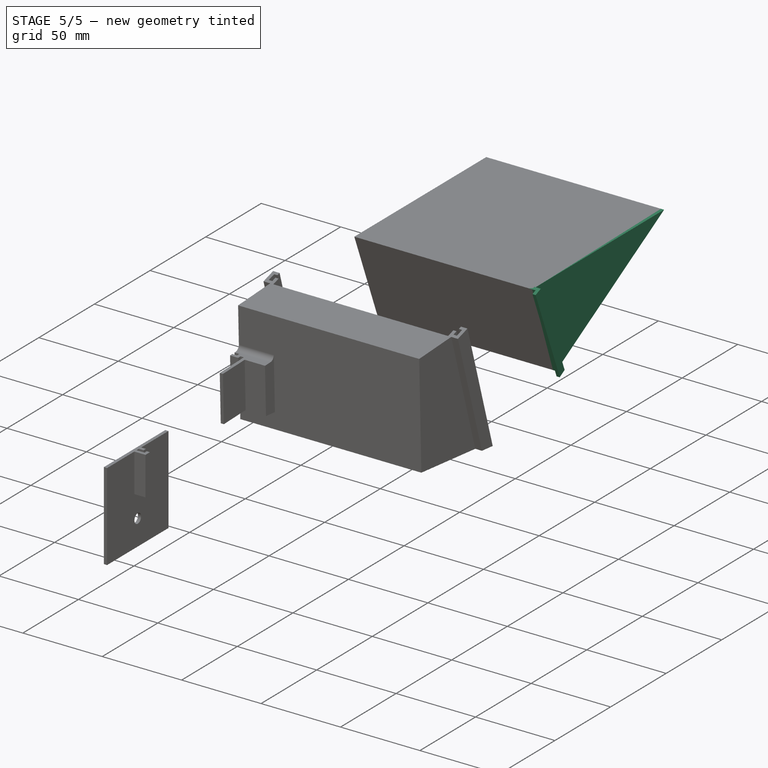
[diagram: stage 5 of 5 — iso view after this stage's code; geometry added in this stage tinted green]
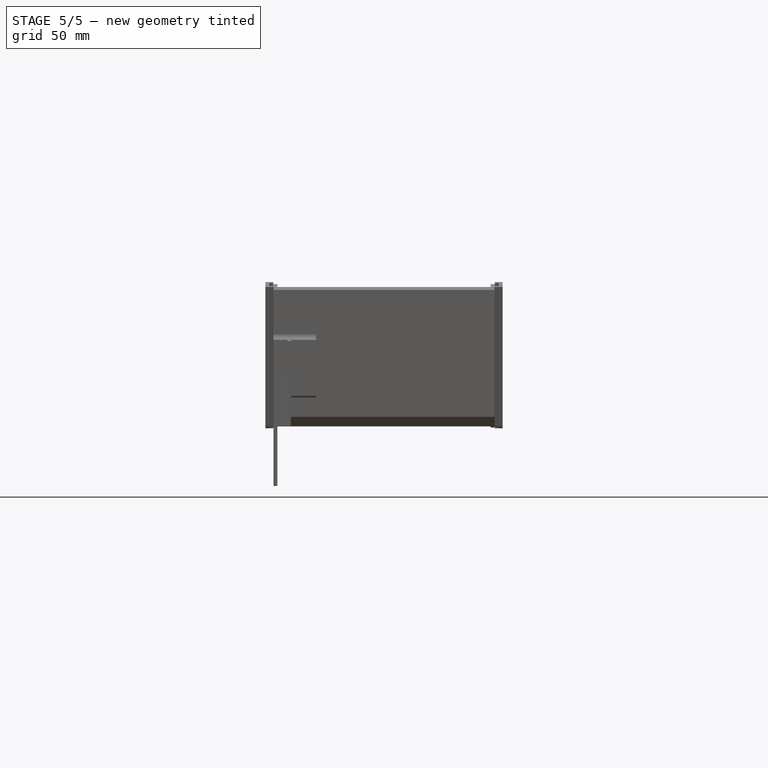
[diagram: stage 5 of 5 — front view after this stage's code; geometry added in this stage tinted green]
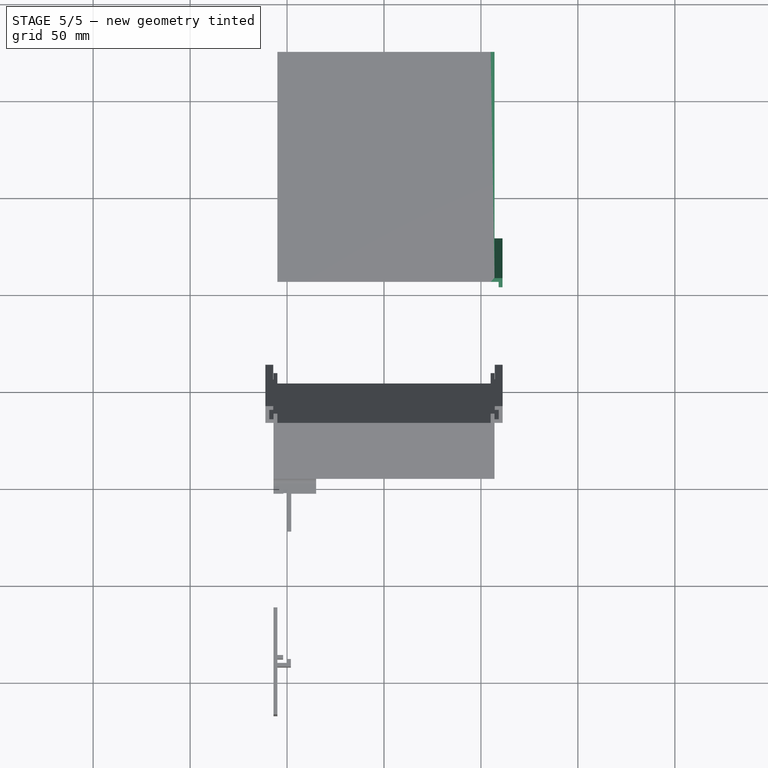
[diagram: stage 5 of 5 — top view after this stage's code; geometry added in this stage tinted green]
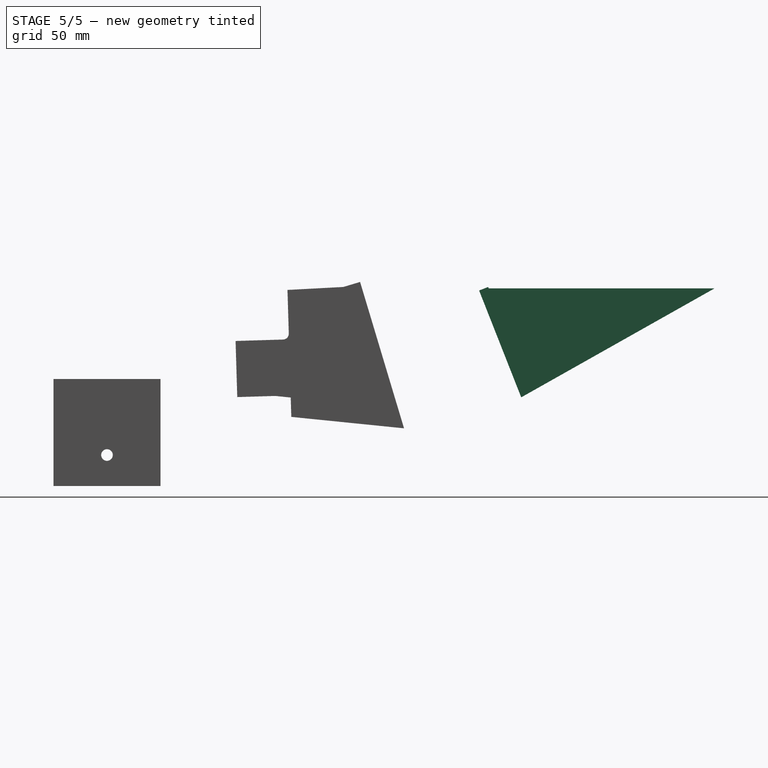
[diagram: stage 5 of 5 — right view after this stage's code; geometry added in this stage tinted green]
FEATURE [Sketcher::SketchObject] Sketch004
  ExternalGeometry = -> [Pad003]
  FullyConstrained = true
  MapMode = 5
  Placement = pos=(55,-2.44e-14,1.22e-14) rot=(0.57735,0.57735,0.57735;2.0944rad)
  Support = -> [Pad003]
  sketch-geometry (3):
    g0: LineSegment StartX=223.821 StartY=74.799 StartZ=0 EndX=126.771 EndY=20.1005 EndZ=0
    g1: LineSegment StartX=126.771 StartY=20.1005 StartZ=0 EndX=105.207 EndY=74.799 EndZ=0
    g2: LineSegment StartX=105.207 StartY=74.799 StartZ=0 EndX=223.821 EndY=74.799 EndZ=0
  constraints (6):
    c: Coincident(g-5,g0)
    c: Coincident(g0,g-5)
    c: Coincident(g0,g1)
    c: Coincident(g1,g-4)
    c: Coincident(g1,g2)
    c: Coincident(g2,g0)
FEATURE [PartDesign::Pad] Pad004
  BaseFeature = -> Pad003
  Direction = (1,1,1)
  Length = 2
  Length2 = 100
  Placement = pos=(0,0,0) rot=(0.57735,0.57735,0.57735;2.0944rad)
  Profile = -> Sketch004
  Type = 0
  expr: Length = <<D>>.thickness
FEATURE [PartDesign::Plane] DatumPlane001
  Length = 151.402
  MapMode = 7
  Placement = pos=(57,105.207,74.799) rot=(0,0.982424,0.186661;3.14159rad)
  ResizeMode = 0
  Support = -> [Pad004]
  Width = 303.655
FEATURE [Sketcher::SketchObject] Sketch005
  FullyConstrained = true
  MapMode = 5
  Placement = pos=(57,105.207,74.799) rot=(0,0.982424,0.186661;3.14159rad)
  Support = -> [DatumPlane001]
  expr: Constraints[15] = <<D>>.thickness + <<D>>.gap
  expr: Constraints[14] = <<D>>.thickness
  expr: Constraints[13] = <<D>>.thickness
  sketch-geometry (6):
    g0: LineSegment StartX=0 StartY=0 StartZ=0 EndX=-2.1 EndY=0 EndZ=0
    g1: LineSegment StartX=-2.1 StartY=0 StartZ=0 EndX=-2.1 EndY=-3 EndZ=0
    g2: LineSegment StartX=-2.1 StartY=-3 StartZ=0 EndX=-4.1 EndY=-3 EndZ=0
    g3: LineSegment StartX=-4.1 StartY=-3 StartZ=0 EndX=-4.1 EndY=2 EndZ=0
    g4: LineSegment StartX=-4.1 StartY=2 StartZ=0 EndX=0 EndY=2 EndZ=0
    g5: LineSegment StartX=0 StartY=2 StartZ=0 EndX=0 EndY=0 EndZ=0
  constraints (17):
    c: Coincident(g-1,g0)
    c: PointOnObject(g0,g-1)
    c: Coincident(g0,g1)
    c: Vertical(g1)
    c: Coincident(g1,g2)
    c: Horizontal(g2)
    c: Coincident(g2,g3)
    c: Vertical(g3)
    c: Coincident(g3,g4)
    c: PointOnObject(g4,g-2)
    c: Horizontal(g4)
    c: Coincident(g4,g5)
    c: Coincident(g5,g0)
    c: Distance(g2) = 2
    c: Distance(g5) = 2
    c: Distance(g0) = 2.1
    c: Distance(g1) = 3
FEATURE [PartDesign::Pad] Pad005
  BaseFeature = -> Pad004
  Direction = (1,1,1)
  Length = 10
  Length2 = 100
  Placement = pos=(0,0,0) rot=(0.57735,0.57735,0.57735;2.0944rad)
  Profile = -> Sketch005
  Type = 3
  UpToFace = -> Pad004 [Face7]
FEATURE [Sketcher::SketchObject] Sketch006
  ExternalGeometry = -> [Pad005]
  FullyConstrained = true
  MapMode = 5
  Placement = pos=(3.72e-14,20.9821,-37.2278) rot=(0.24601,0.24601,-0.937528;1.63526rad)
  Support = -> [Pad005]
  expr: Constraints[11] = <<D>>.width / 2
  sketch-geometry (5):
    g0: Circle CenterX=-152.604 CenterY=-12.5 CenterZ=0 NormalX=0 NormalY=0 NormalZ=1 AngleXU=0 Radius=4.12
    g1: Circle CenterX=-152.604 CenterY=12.5 CenterZ=0 NormalX=0 NormalY=0 NormalZ=1 AngleXU=0 Radius=4.12
    g2: Circle CenterX=-172.604 CenterY=12.5 CenterZ=0 NormalX=0 NormalY=0 NormalZ=1 AngleXU=0 Radius=4.12
    g3: Circle CenterX=-172.604 CenterY=-12.5 CenterZ=0 NormalX=0 NormalY=0 NormalZ=1 AngleXU=0 Radius=4.12
    g4: GeomPoint X=-122.604 Y=8.09e-14 Z=0
  constraints (14):
    c: Vertical(g3,g2)
    c: Vertical(g0,g1)
    c: Horizontal(g0,g3)
    c: Horizontal(g1,g2)
    c: Equal(g3,g2)
    c: Equal(g2,g1)
    c: Equal(g1,g0)
    c: Diameter(g1) = 8.24
    c: DistanceX(g0,g-4) = 30
    c: DistanceX(g3,g-4) = 50
    c: PointOnObject(g4,g-4)
    c: Distance(g4,g-4) = 55
    c: DistanceY(g4,g1) = 12.5
    c: DistanceY(g0,g1) = 25
FEATURE [PartDesign::Hole] Hole
  BaseFeature = -> Pad005
  Depth = 25
  DepthType = 0
  Diameter = 3.8
  DrillForDepth = false
  DrillPoint = 1
  DrillPointAngle = 89
  HoleCutCountersinkAngle = 105
  HoleCutCustomValues = false
  HoleCutDepth = 5.4
  HoleCutDiameter = 9.28
  HoleCutType = 2
  ModelActualThread = false
  Placement = pos=(0,0,0) rot=(0.57735,0.57735,0.57735;2.0944rad)
  Profile = -> Sketch006
  Tapered = false
  TaperedAngle = 90
  ThreadAngle = 0
  ThreadClass = 0
  ThreadCutOffInner = 0
  ThreadCutOffOuter = 0
  ThreadDirection = 0
  ThreadFit = 0
  ThreadPitch = 0
  ThreadSize = 0
  ThreadType = 0
  Threaded = false
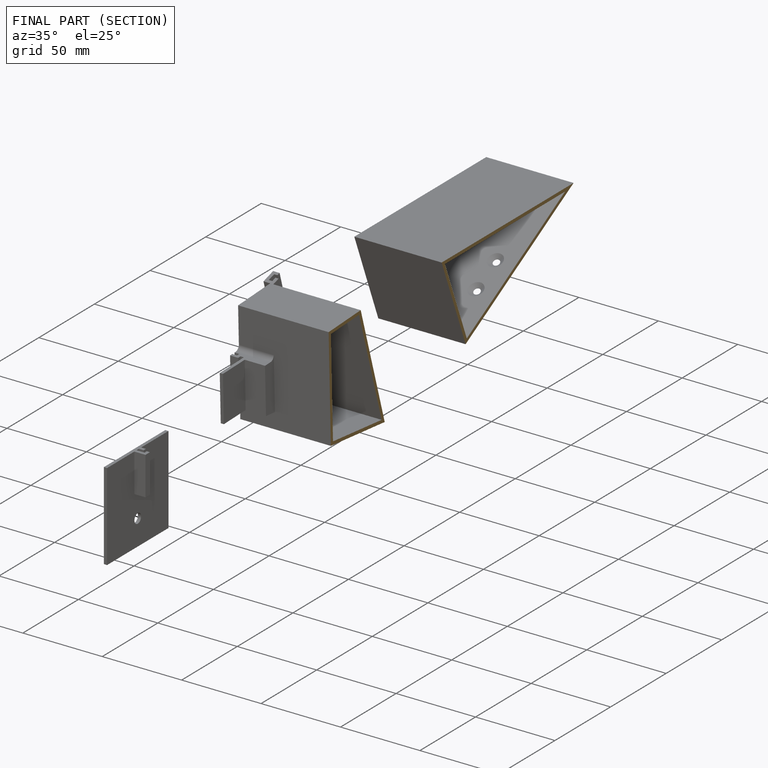
[diagram: finished part — half-section view (interior)]
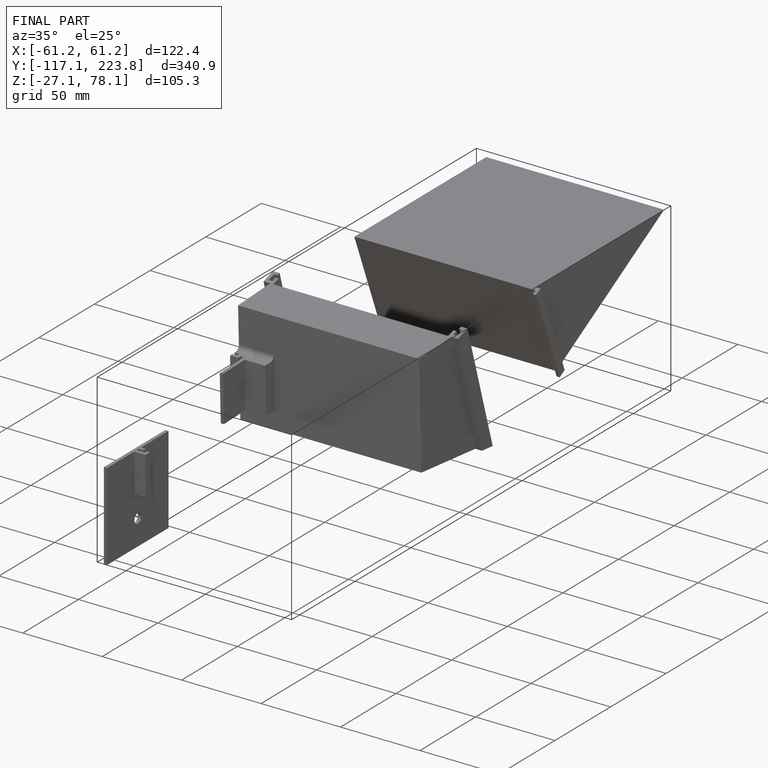
[diagram: finished part — iso view with bounding-box wireframe]
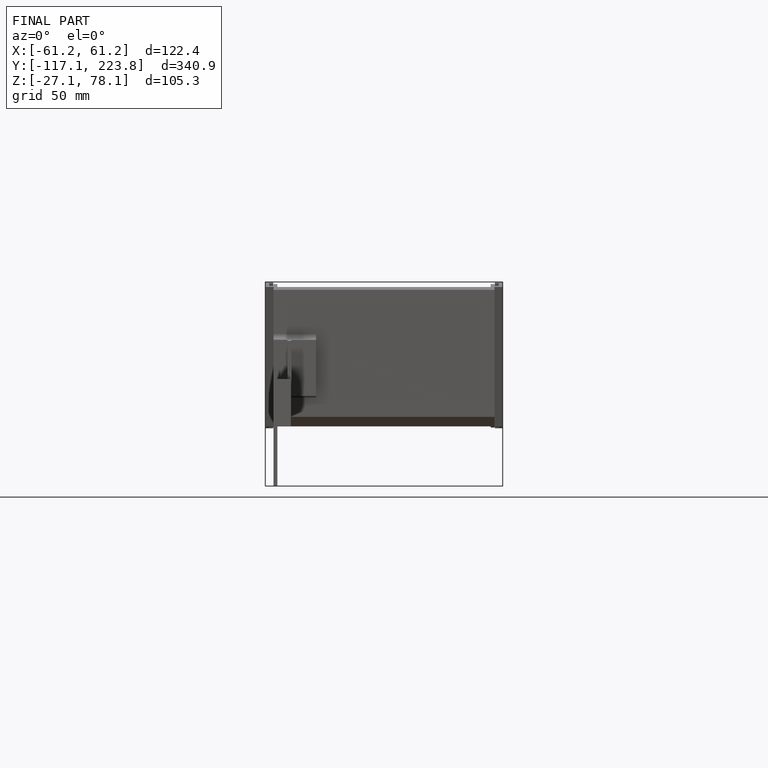
[diagram: finished part — front view with bounding-box wireframe]
